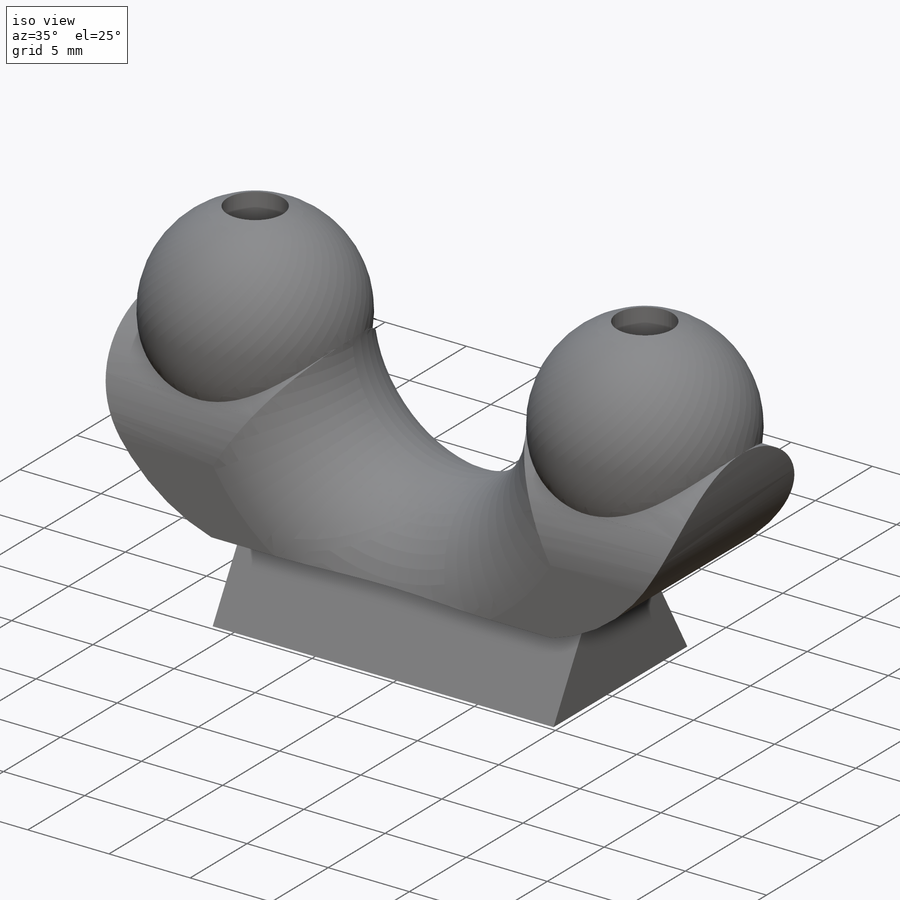
[diagram: iso view]
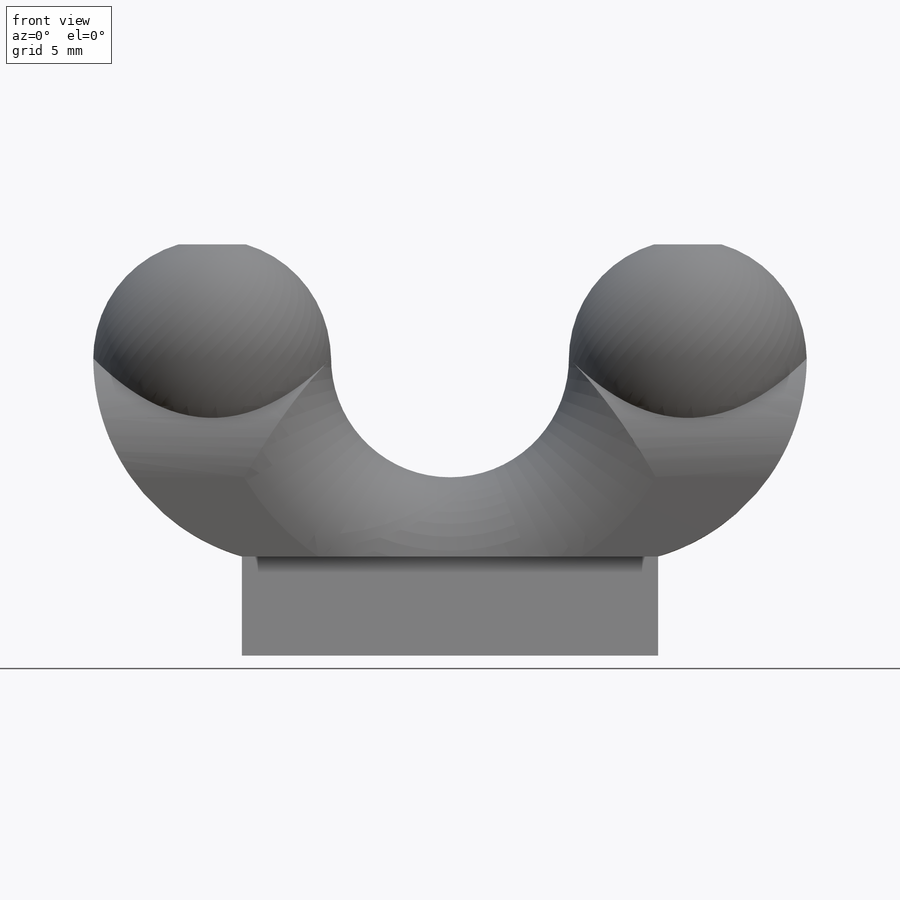
[diagram: front view]
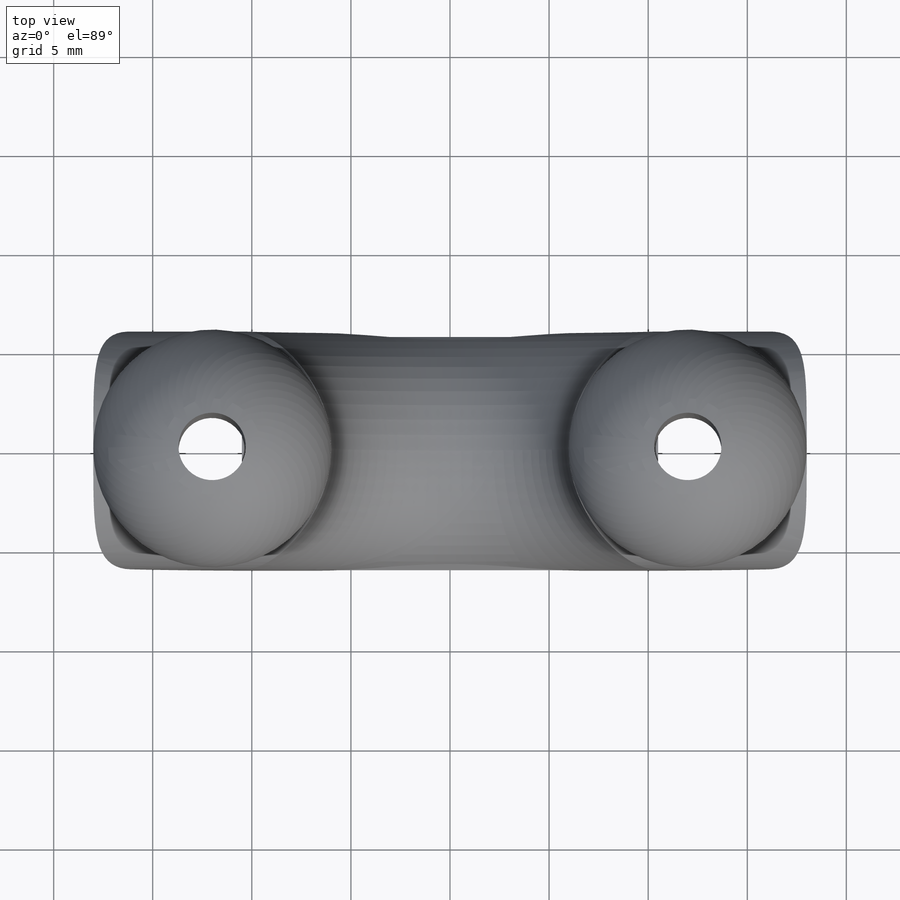
[diagram: top view]
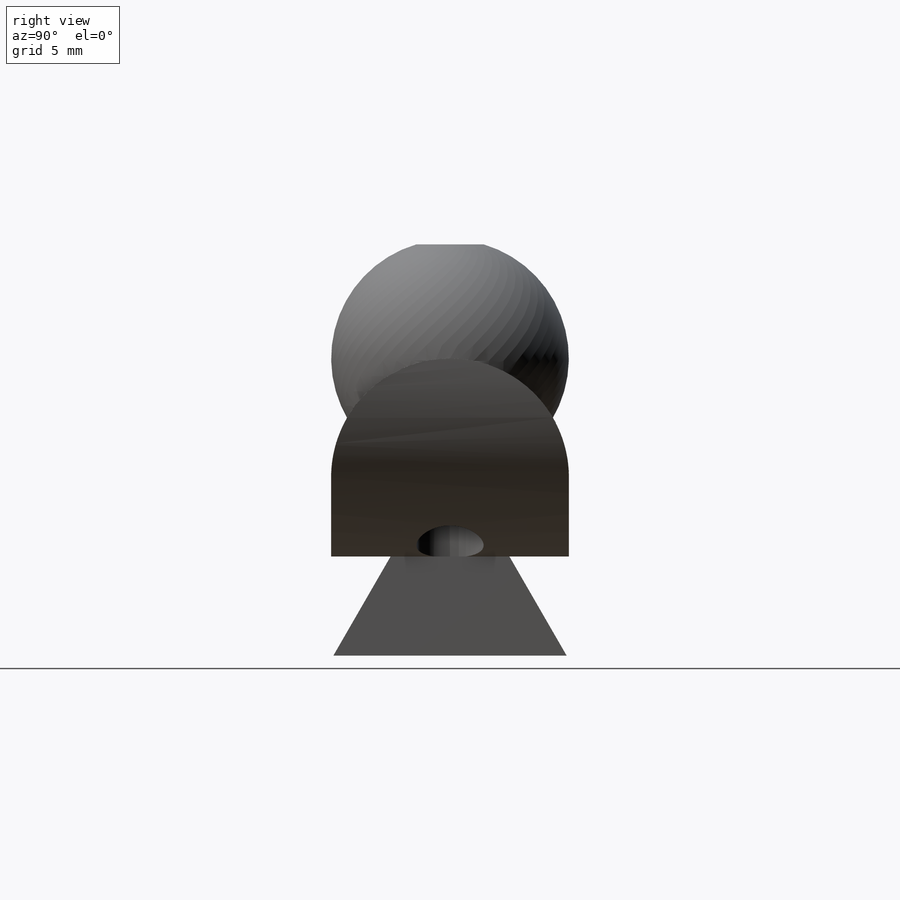
[diagram: right view]
SOLIDWORKS PART (.sldprt)
format: sldprt  version: not decoded by parser v0  size: 366,080 bytes
history: native  units: mm
features: sketch x5, extrude x2, revolve x2, fillet x2, material x1, plane x1, cut_extrude x1 (+11 scaffold rows collapsed)
feature tree (25):
  scaffold x11  (default folders/planes/origin — collapsed)
  material  "ABS"
  sketch  "Sketch1"  dims[D2=6.0mm D1=3.0mm D3=16.0mm D4=21.0mm]
  extrude  "Extrude1"  Depth=12mm
  sketch  "Sketch2"
  revolve  "Revolve1"  Angle=360deg
  revolve  "Revolve2"  [1 undecoded]
  sketch  "Sketch2<3>"  dims[D1=360.0deg]
  plane  "Plane4"
  sketch  "Sketch3"  dims[D1=3.4mm]
  cut_extrude  "Extrude2"  [1 undecoded]
  sketch  "Sketch4"  dims[c1.D1=6.0mm c1.D2=5.0mm c1.D3=~11.061695mm c2.D3=60.0deg]
  extrude  "Extrude3"  [1 undecoded]
  fillet  "Fillet2"  Radius=6mm
  fillet  "Fillet3"  Radius=6mm
decode coverage: 8 of 12 modeling features carry decoded parameters
note: ~ marks probable driven/reference dimensions
note: 3 parameter values undecoded
summary: no parameter record found for 3 features
note: suppression state not decoded; provenance and decode notes live in map.json
